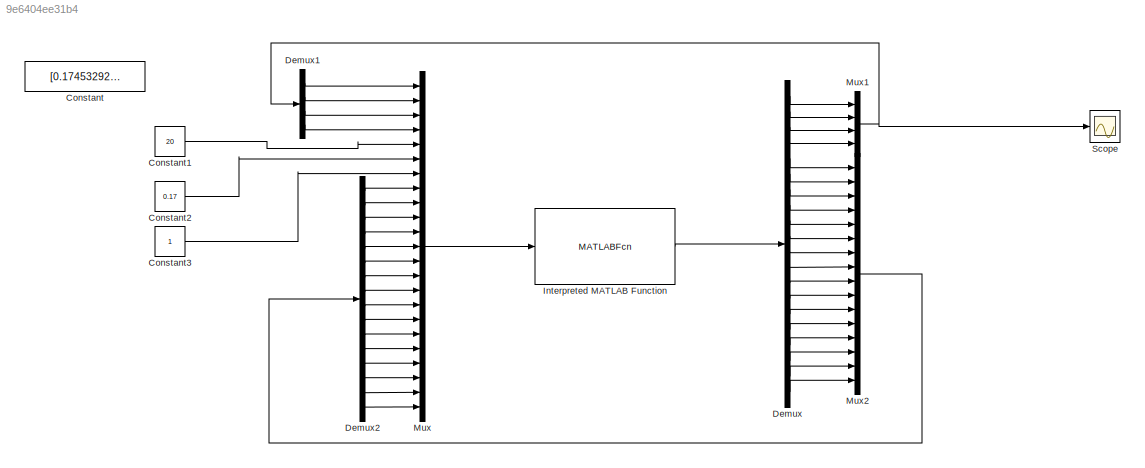
MODEL slx_9e6404ee31b4
KIND model
CONFIG AbsTol = auto
CONFIG EnableMultiTasking = off
CONFIG FixedStep = auto
CONFIG MaxStep = auto
CONFIG MinStep = auto
CONFIG RelTol = 1e-3
CONFIG SampleTimeConstraint = Unconstrained
CONFIG SolverName = VariableStepAuto
CONFIG StartTime = 0.0
CONFIG StopTime = 1
BLOCK [Constant] Constant
  Value = [0.1745329252; 1]
BLOCK [Constant] Constant1
  Value = 20
BLOCK [Constant] Constant2
  Value = 0.17
BLOCK [Constant] Constant3
BLOCK [Demux] Demux
  Outputs = 20
  Ports = [1, 20]
BLOCK [Demux] Demux1
  Ports = [1, 4]
BLOCK [Demux] Demux2
  Outputs = 16
  Ports = [1, 16]
BLOCK [MATLABFcn] Interpreted MATLAB Function
  MATLABFcn = EKF_full
  OutputDimensions = 20
  Ports = [1, 1]
BLOCK [Mux] Mux
  DisplayOption = bar
  Inputs = 23
  Ports = [23, 1]
BLOCK [Mux] Mux1
  DisplayOption = bar
  Ports = [4, 1]
BLOCK [Mux] Mux2
  DisplayOption = bar
  Inputs = 16
  Ports = [16, 1]
BLOCK [Scope] Scope
  Floating = off
  NumInputPorts = 1
  Ports = [1]
  ScopeSpecificationString = Simulink.scopes.TimeScopeBlockCfg('CurrentConfiguration', extmgr.ConfigurationSet(extmgr.Configuration('Core','General UI',true),extmgr.Configuration('Core','Source UI',true),extmgr.Configuration('Sources','WiredSimulink',true),extmgr.Configuration('Visuals','Time Domain',true,'SerializedDisplays',{struct('MinYLimReal','-1.12467','MaxYLimReal','6.96921','YLabelReal','','MinYLimMag','0.00000','MaxY...<+1393ch>
LINE Constant1:1 -> Mux:5
LINE Constant2:1 -> Mux:6
LINE Constant3:1 -> Mux:7
LINE Demux1:1 -> Mux:1
LINE Demux1:2 -> Mux:2
LINE Demux1:3 -> Mux:3
LINE Demux1:4 -> Mux:4
LINE Demux2:1 -> Mux:8
LINE Demux2:10 -> Mux:17
LINE Demux2:11 -> Mux:18
LINE Demux2:12 -> Mux:19
LINE Demux2:13 -> Mux:20
LINE Demux2:14 -> Mux:21
LINE Demux2:15 -> Mux:22
LINE Demux2:16 -> Mux:23
LINE Demux2:2 -> Mux:9
LINE Demux2:3 -> Mux:10
LINE Demux2:4 -> Mux:11
LINE Demux2:5 -> Mux:12
LINE Demux2:6 -> Mux:13
LINE Demux2:7 -> Mux:14
LINE Demux2:8 -> Mux:15
LINE Demux2:9 -> Mux:16
LINE Demux:1 -> Mux1:1
LINE Demux:10 -> Mux2:6
LINE Demux:11 -> Mux2:7
LINE Demux:12 -> Mux2:8
LINE Demux:13 -> Mux2:9
LINE Demux:14 -> Mux2:10
LINE Demux:15 -> Mux2:11
LINE Demux:16 -> Mux2:12
LINE Demux:17 -> Mux2:13
LINE Demux:18 -> Mux2:14
LINE Demux:19 -> Mux2:15
LINE Demux:2 -> Mux1:2
LINE Demux:20 -> Mux2:16
LINE Demux:3 -> Mux1:3
LINE Demux:4 -> Mux1:4
LINE Demux:5 -> Mux2:1
LINE Demux:6 -> Mux2:2
LINE Demux:7 -> Mux2:3
LINE Demux:8 -> Mux2:4
LINE Demux:9 -> Mux2:5
LINE Interpreted MATLAB Function:1 -> Demux:1
NET Mux1:1 -> Demux1:1, Scope:1
LINE Mux2:1 -> Demux2:1
LINE Mux:1 -> Interpreted MATLAB Function:1
note: NET lines group one-source signal fan-out (src -> all destinations, sorted); 1:1 wires keep LINE
